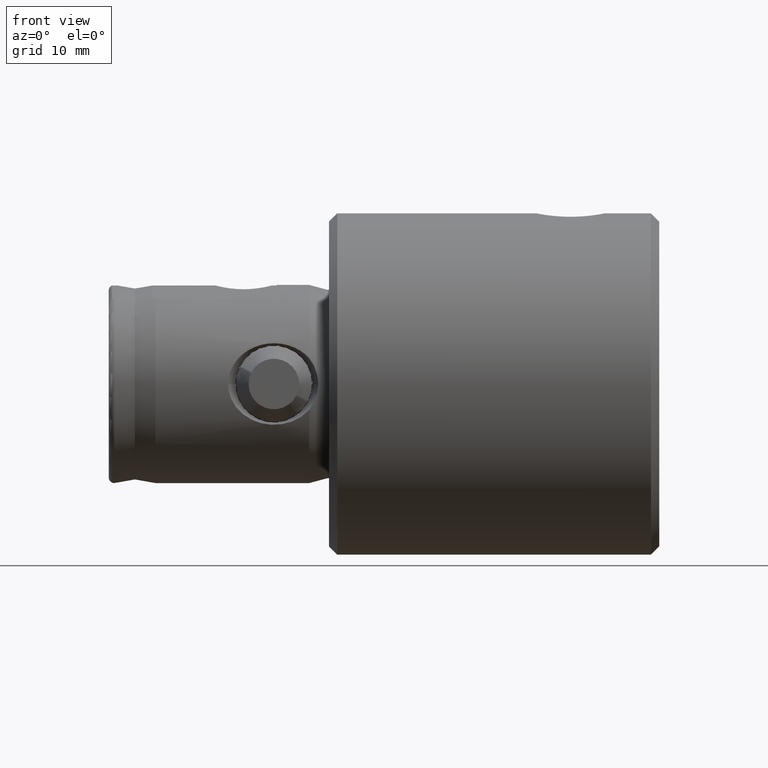
[diagram: clean part render]
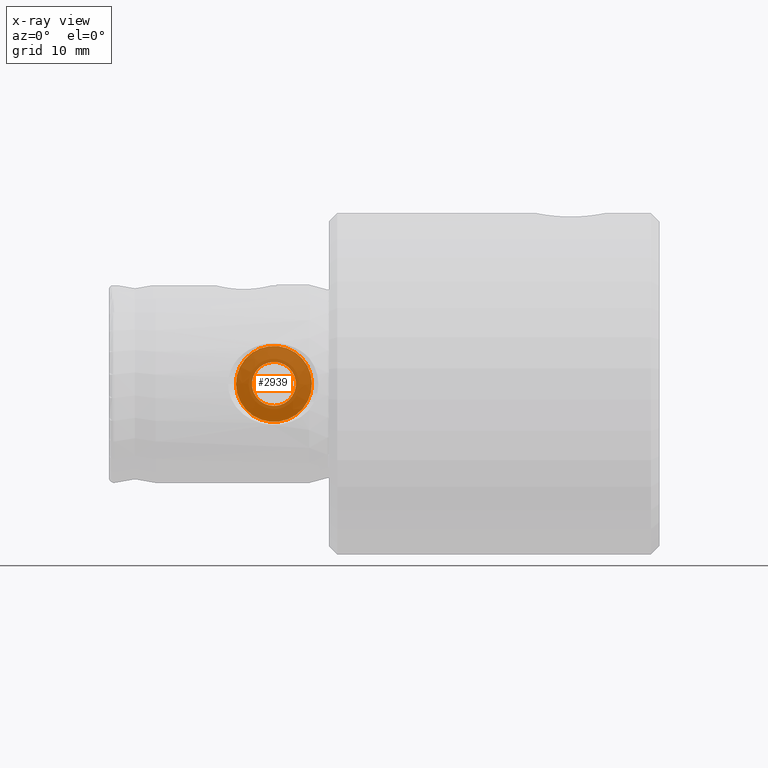
[diagram: x-ray — body ghosted, one internal face saturated and labeled with its STEP entity id]
A machine part, front view, then the same camera in x-ray: the body is ghosted and one INTERNAL B-rep face — a face not visible from any outside direction — is saturated and labeled: STEP entity #2939.
In plain terms, the highlighted planar face has unit normal (-0, -1, 0).
Its self-contained STEP definition (entity closure, byte-faithful):
#89 = VERTEX_POINT ( 'NONE', #2019 ) ;
#472 = CARTESIAN_POINT ( 'NONE',  ( 9.099999999999999600, 2.000000000000001800, 1.446289530755977800E-030 ) ) ;
#558 = AXIS2_PLACEMENT_3D ( 'NONE', #472, #3130, #2786 ) ;
#676 = EDGE_CURVE ( 'NONE', #1975, #89, #709, .T. ) ;
#709 = CIRCLE ( 'NONE', #2492, 2.000000000000000000 ) ;
#740 = DIRECTION ( 'NONE',  ( -1.000000000000000000, -1.736302482672550400E-016, -1.589329154676898000E-031 ) ) ;
#750 = FACE_BOUND ( 'NONE', #1822, .T. ) ;
#876 = AXIS2_PLACEMENT_3D ( 'NONE', #2304, #4042, #1413 ) ;
#903 = EDGE_CURVE ( 'NONE', #89, #1975, #1598, .T. ) ;
#922 = CIRCLE ( 'NONE', #3342, 3.449999999999998800 ) ;
#1150 = DIRECTION ( 'NONE',  ( 0.0000000000000000000, -1.000000000000000000, 4.958172215823205600E-047 ) ) ;
#1179 = CARTESIAN_POINT ( 'NONE',  ( 9.099999999999999600, 0.0000000000000000000, 1.446289530755977800E-030 ) ) ;
#1362 = EDGE_LOOP ( 'NONE', ( #3790, #1874 ) ) ;
#1413 = DIRECTION ( 'NONE',  ( 0.0000000000000000000, -1.000000000000000000, 4.958172215823205600E-047 ) ) ;
#1474 = CARTESIAN_POINT ( 'NONE',  ( 9.099999999999999600, -2.000000000000000000, 1.446289530755978000E-030 ) ) ;
#1496 = DIRECTION ( 'NONE',  ( -1.000000000000000000, -1.736302482672550400E-016, -1.589329154676898000E-031 ) ) ;
#1598 = CIRCLE ( 'NONE', #3366, 2.000000000000000000 ) ;
#1616 = CIRCLE ( 'NONE', #876, 3.449999999999998800 ) ;
#1631 = EDGE_CURVE ( 'NONE', #3867, #3651, #922, .T. ) ;
#1664 = CARTESIAN_POINT ( 'NONE',  ( 9.099999999999999600, 0.0000000000000000000, 1.446289530755977800E-030 ) ) ;
#1822 = EDGE_LOOP ( 'NONE', ( #2665, #1835 ) ) ;
#1835 = ORIENTED_EDGE ( 'NONE', *, *, #903, .F. ) ;
#1874 = ORIENTED_EDGE ( 'NONE', *, *, #4220, .T. ) ;
#1975 = VERTEX_POINT ( 'NONE', #1474 ) ;
#2019 = CARTESIAN_POINT ( 'NONE',  ( 9.099999999999999600, 2.000000000000000000, 2.449293598294718200E-016 ) ) ;
#2304 = CARTESIAN_POINT ( 'NONE',  ( 9.099999999999999600, 0.0000000000000000000, 1.446289530755977800E-030 ) ) ;
#2311 = CARTESIAN_POINT ( 'NONE',  ( 9.099999999999999600, -1.889411517467288900E-046, 3.449999999999998800 ) ) ;
#2492 = AXIS2_PLACEMENT_3D ( 'NONE', #1179, #3159, #4108 ) ;
#2507 = FACE_OUTER_BOUND ( 'NONE', #1362, .T. ) ;
#2546 = CARTESIAN_POINT ( 'NONE',  ( 9.099999999999999600, 4.225031457058367800E-016, -3.449999999999998800 ) ) ;
#2665 = ORIENTED_EDGE ( 'NONE', *, *, #676, .F. ) ;
#2786 = DIRECTION ( 'NONE',  ( 1.736302482672550400E-016, -1.000000000000000000, 5.476555123093591900E-047 ) ) ;
#2804 = CARTESIAN_POINT ( 'NONE',  ( 9.099999999999999600, 0.0000000000000000000, 1.446289530755977800E-030 ) ) ;
#2939 = ADVANCED_FACE ( 'NONE', ( #2507, #750 ), #4080, .T. ) ;
#3071 = DIRECTION ( 'NONE',  ( 0.0000000000000000000, -1.000000000000000000, 8.552847072295026100E-047 ) ) ;
#3130 = DIRECTION ( 'NONE',  ( -1.000000000000000000, -1.736302482672550400E-016, -1.589329154676898000E-031 ) ) ;
#3159 = DIRECTION ( 'NONE',  ( -1.000000000000000000, -1.736302482672550400E-016, -1.589329154676898000E-031 ) ) ;
#3342 = AXIS2_PLACEMENT_3D ( 'NONE', #2804, #1496, #1150 ) ;
#3366 = AXIS2_PLACEMENT_3D ( 'NONE', #1664, #740, #3071 ) ;
#3651 = VERTEX_POINT ( 'NONE', #2546 ) ;
#3790 = ORIENTED_EDGE ( 'NONE', *, *, #1631, .T. ) ;
#3867 = VERTEX_POINT ( 'NONE', #2311 ) ;
#4042 = DIRECTION ( 'NONE',  ( -1.000000000000000000, -1.736302482672550400E-016, -1.589329154676898000E-031 ) ) ;
#4080 = PLANE ( 'NONE',  #558 ) ;
#4108 = DIRECTION ( 'NONE',  ( 0.0000000000000000000, -1.000000000000000000, 8.552847072295026100E-047 ) ) ;
#4220 = EDGE_CURVE ( 'NONE', #3651, #3867, #1616, .T. ) ;